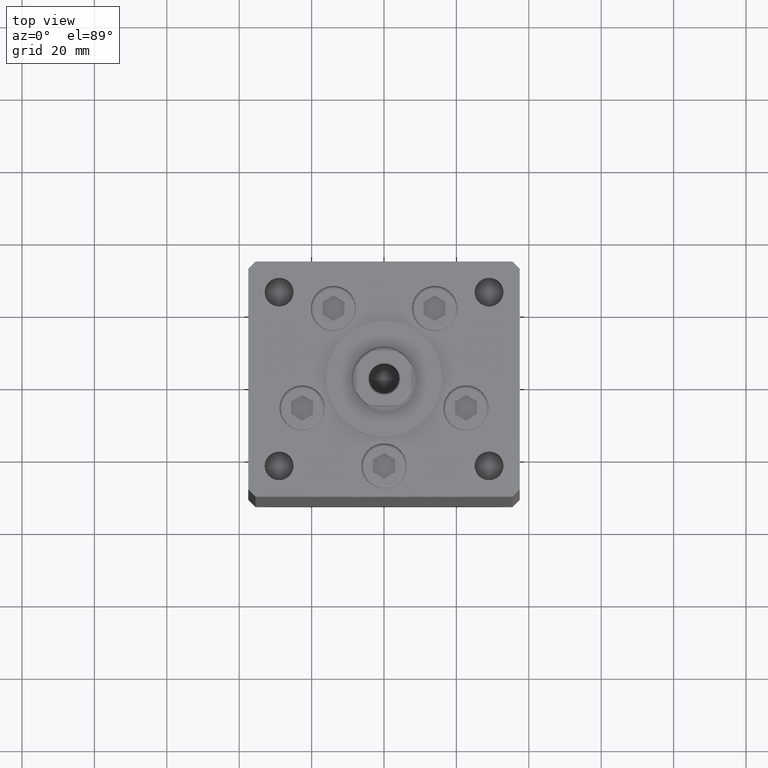
[diagram: clean part render]
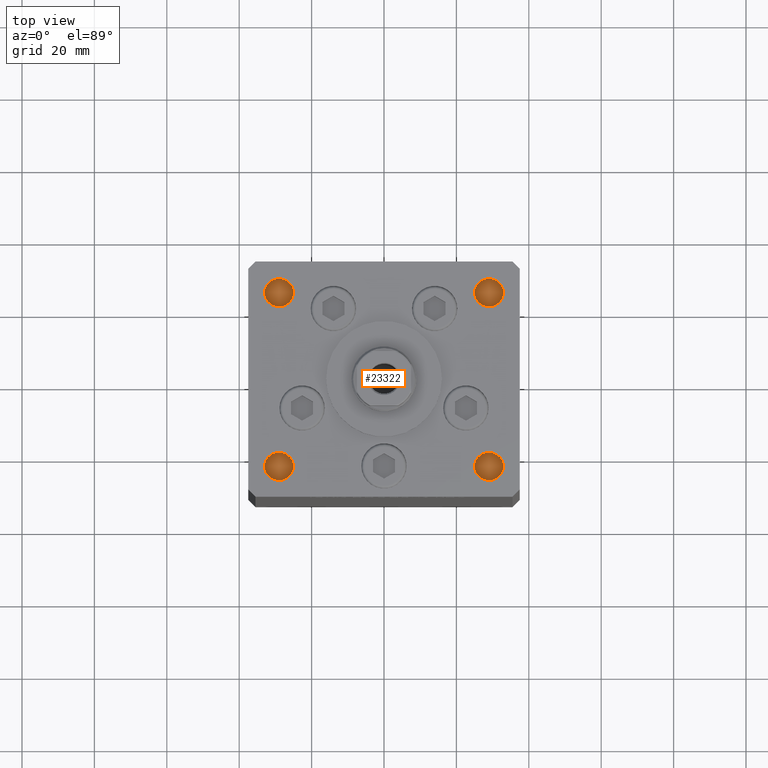
[diagram: same view with one face highlighted and labeled with its STEP entity id]
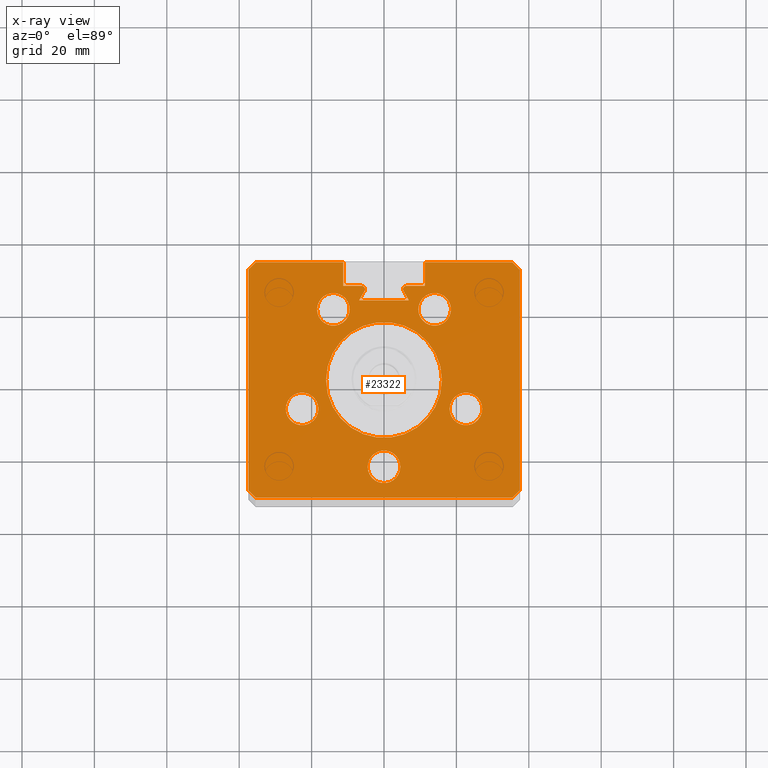
[diagram: x-ray of the same camera — body ghosted, the highlighted face saturated]
A machine part, top view. The second image highlights one B-rep face of the part: STEP entity #23322.
The next image is the same camera in x-ray: the body ghosted, the highlighted face saturated — about 0% of this face is hidden behind the body in this view.
In plain terms, the highlighted planar face has unit normal (0, 0, -1).
Its self-contained STEP definition (entity closure, byte-faithful):
#106 = CARTESIAN_POINT ( 'NONE',  ( -37.49999999999999289, -30.50000000000000000, 136.0000000000000000 ) ) ;
#451 = CARTESIAN_POINT ( 'NONE',  ( 9.491068579633218150, 19.50000000000000000, 136.0000000000000000 ) ) ;
#575 = VECTOR ( 'NONE', #12359, 1000.000000000000000 ) ;
#786 = EDGE_LOOP ( 'NONE', ( #5341, #2665 ) ) ;
#1082 = DIRECTION ( 'NONE',  ( 1.000000000000000000, 0.000000000000000000, 0.000000000000000000 ) ) ;
#2126 = CIRCLE ( 'NONE', #44800, 4.500000000000000888 ) ;
#2306 = PLANE ( 'NONE',  #11829 ) ;
#2416 = DIRECTION ( 'NONE',  ( 0.000000000000000000, 0.000000000000000000, -1.000000000000000000 ) ) ;
#2665 = ORIENTED_EDGE ( 'NONE', *, *, #43012, .F. ) ;
#2987 = CARTESIAN_POINT ( 'NONE',  ( 11.25000000000000178, 25.99999999999999289, 136.0000000000000000 ) ) ;
#2992 = CARTESIAN_POINT ( 'NONE',  ( -37.50000000000000711, 30.50000000000000000, 136.0000000000000000 ) ) ;
#3022 = DIRECTION ( 'NONE',  ( -1.000000000000000000, 0.000000000000000000, 0.000000000000000000 ) ) ;
#3182 = EDGE_LOOP ( 'NONE', ( #25991, #31328 ) ) ;
#3511 = EDGE_CURVE ( 'NONE', #28424, #33686, #51553, .T. ) ;
#3541 = VECTOR ( 'NONE', #19846, 1000.000000000000000 ) ;
#3674 = AXIS2_PLACEMENT_3D ( 'NONE', #12548, #21465, #21201 ) ;
#3694 = EDGE_CURVE ( 'NONE', #33686, #28424, #13075, .T. ) ;
#3736 = VECTOR ( 'NONE', #44527, 1000.000000000000000 ) ;
#3798 = CARTESIAN_POINT ( 'NONE',  ( -18.12741699796951877, -8.000000000000000000, 136.0000000000000000 ) ) ;
#3866 = LINE ( 'NONE', #10957, #3541 ) ;
#4028 = CIRCLE ( 'NONE', #48374, 4.500000000000000888 ) ;
#4087 = EDGE_CURVE ( 'NONE', #5761, #10708, #25005, .T. ) ;
#4102 = VERTEX_POINT ( 'NONE', #37808 ) ;
#4166 = CARTESIAN_POINT ( 'NONE',  ( -35.50000000000000000, 32.49999999999999289, 136.0000000000000000 ) ) ;
#4441 = ORIENTED_EDGE ( 'NONE', *, *, #40258, .F. ) ;
#5275 = LINE ( 'NONE', #29652, #22094 ) ;
#5293 = EDGE_CURVE ( 'NONE', #23223, #45381, #14691, .T. ) ;
#5341 = ORIENTED_EDGE ( 'NONE', *, *, #23480, .F. ) ;
#5484 = DIRECTION ( 'NONE',  ( 0.7071067811865474617, -0.7071067811865474617, 0.000000000000000000 ) ) ;
#5538 = DIRECTION ( 'NONE',  ( 0.4999999999999996114, 0.8660254037844388186, 0.000000000000000000 ) ) ;
#5761 = VERTEX_POINT ( 'NONE', #2987 ) ;
#5860 = CARTESIAN_POINT ( 'NONE',  ( 0.000000000000000000, 25.99999999999999289, 136.0000000000000000 ) ) ;
#5907 = EDGE_CURVE ( 'NONE', #38806, #48786, #15796, .T. ) ;
#6199 = VERTEX_POINT ( 'NONE', #22854 ) ;
#6410 = ORIENTED_EDGE ( 'NONE', *, *, #20699, .F. ) ;
#6443 = CARTESIAN_POINT ( 'NONE',  ( 0.000000000000000000, 25.99999999999999289, 136.0000000000000000 ) ) ;
#6708 = CARTESIAN_POINT ( 'NONE',  ( -5.250000000000000000, 25.06666666666599141, 136.0000000000000000 ) ) ;
#6720 = LINE ( 'NONE', #30040, #45207 ) ;
#6801 = VECTOR ( 'NONE', #5484, 1000.000000000000114 ) ;
#7028 = ORIENTED_EDGE ( 'NONE', *, *, #51155, .F. ) ;
#7127 = CARTESIAN_POINT ( 'NONE',  ( 6.183333333334001480, 25.06666666666599141, 136.0000000000000000 ) ) ;
#7144 = VERTEX_POINT ( 'NONE', #9179 ) ;
#7850 = DIRECTION ( 'NONE',  ( 1.000000000000000000, 0.000000000000000000, 0.000000000000000000 ) ) ;
#7851 = CARTESIAN_POINT ( 'NONE',  ( 0.000000000000000000, -24.00000000000000000, 136.0000000000000000 ) ) ;
#8125 = EDGE_LOOP ( 'NONE', ( #37289, #7028 ) ) ;
#8245 = VERTEX_POINT ( 'NONE', #14088 ) ;
#8321 = DIRECTION ( 'NONE',  ( -2.275047181608927644E-16, -1.000000000000000000, 0.000000000000000000 ) ) ;
#8527 = AXIS2_PLACEMENT_3D ( 'NONE', #32934, #29010, #36079 ) ;
#9133 = FACE_BOUND ( 'NONE', #786, .T. ) ;
#9179 = CARTESIAN_POINT ( 'NONE',  ( -6.183333333334001480, 25.99999999999999289, 136.0000000000000000 ) ) ;
#9218 = CIRCLE ( 'NONE', #49348, 4.500000000000003553 ) ;
#9411 = CARTESIAN_POINT ( 'NONE',  ( 13.99106857963322170, 19.50000000000000000, 136.0000000000000000 ) ) ;
#9645 = DIRECTION ( 'NONE',  ( 1.000000000000000000, 0.000000000000000000, 0.000000000000000000 ) ) ;
#10638 = LINE ( 'NONE', #50722, #12168 ) ;
#10708 = VERTEX_POINT ( 'NONE', #18925 ) ;
#10957 = CARTESIAN_POINT ( 'NONE',  ( 14.68339468389911495, 8.477461873366666012, 136.0000000000000000 ) ) ;
#10991 = ORIENTED_EDGE ( 'NONE', *, *, #25145, .T. ) ;
#11260 = AXIS2_PLACEMENT_3D ( 'NONE', #11577, #39360, #40111 ) ;
#11577 = CARTESIAN_POINT ( 'NONE',  ( -6.183333333334001480, 25.06666666666599141, 136.0000000000000000 ) ) ;
#11829 = AXIS2_PLACEMENT_3D ( 'NONE', #33236, #13062, #49217 ) ;
#12013 = CARTESIAN_POINT ( 'NONE',  ( 35.50000000000000000, 32.49999999999999289, 136.0000000000000000 ) ) ;
#12023 = DIRECTION ( 'NONE',  ( 0.000000000000000000, 0.000000000000000000, 1.000000000000000000 ) ) ;
#12106 = CARTESIAN_POINT ( 'NONE',  ( 0.000000000000000000, 21.99999999999986855, 136.0000000000000000 ) ) ;
#12168 = VECTOR ( 'NONE', #31074, 1000.000000000000000 ) ;
#12217 = EDGE_CURVE ( 'NONE', #33455, #40771, #48936, .T. ) ;
#12359 = DIRECTION ( 'NONE',  ( -1.000000000000000000, 0.000000000000000000, 0.000000000000000000 ) ) ;
#12548 = CARTESIAN_POINT ( 'NONE',  ( -22.62741699796951877, -8.000000000000000000, 136.0000000000000000 ) ) ;
#13062 = DIRECTION ( 'NONE',  ( 0.000000000000000000, 0.000000000000000000, -1.000000000000000000 ) ) ;
#13075 = CIRCLE ( 'NONE', #45736, 16.00000000000000000 ) ;
#13087 = DIRECTION ( 'NONE',  ( 1.000000000000000000, 0.000000000000000000, 0.000000000000000000 ) ) ;
#13120 = LINE ( 'NONE', #25180, #51525 ) ;
#13150 = ORIENTED_EDGE ( 'NONE', *, *, #4087, .T. ) ;
#13311 = EDGE_CURVE ( 'NONE', #51743, #30775, #4028, .T. ) ;
#13327 = ORIENTED_EDGE ( 'NONE', *, *, #31346, .F. ) ;
#13381 = DIRECTION ( 'NONE',  ( 1.000000000000000000, 0.000000000000000000, 0.000000000000000000 ) ) ;
#13621 = CIRCLE ( 'NONE', #38734, 0.9333333333340008142 ) ;
#13672 = ORIENTED_EDGE ( 'NONE', *, *, #32019, .F. ) ;
#13830 = FACE_BOUND ( 'NONE', #22710, .T. ) ;
#14039 = LINE ( 'NONE', #46792, #42849 ) ;
#14049 = VECTOR ( 'NONE', #8321, 1000.000000000000000 ) ;
#14088 = CARTESIAN_POINT ( 'NONE',  ( -35.49999999999999289, -32.50000000000000000, 136.0000000000000000 ) ) ;
#14337 = AXIS2_PLACEMENT_3D ( 'NONE', #7127, #2416, #50616 ) ;
#14691 = LINE ( 'NONE', #30688, #20658 ) ;
#14727 = CARTESIAN_POINT ( 'NONE',  ( 27.12741699796952233, -8.000000000000000000, 136.0000000000000000 ) ) ;
#15172 = CARTESIAN_POINT ( 'NONE',  ( 18.12741699796951877, -8.000000000000000000, 136.0000000000000000 ) ) ;
#15179 = CARTESIAN_POINT ( 'NONE',  ( 5.375042956467948052, 24.59999999999899245, 136.0000000000000000 ) ) ;
#15311 = CIRCLE ( 'NONE', #29527, 4.500000000000003553 ) ;
#15365 = VERTEX_POINT ( 'NONE', #43714 ) ;
#15589 = CIRCLE ( 'NONE', #19778, 4.500000000000000888 ) ;
#15796 = LINE ( 'NONE', #12106, #575 ) ;
#16013 = CIRCLE ( 'NONE', #14337, 0.9333333333340008142 ) ;
#16468 = CARTESIAN_POINT ( 'NONE',  ( 11.24999999999999467, 32.49999999999999289, 136.0000000000000000 ) ) ;
#16745 = LINE ( 'NONE', #44264, #41052 ) ;
#17052 = CIRCLE ( 'NONE', #3674, 4.500000000000000888 ) ;
#17150 = CARTESIAN_POINT ( 'NONE',  ( 6.876153656360466826, 21.99999999999986855, 136.0000000000000000 ) ) ;
#17237 = FACE_BOUND ( 'NONE', #8125, .T. ) ;
#17572 = EDGE_CURVE ( 'NONE', #7144, #15365, #22940, .T. ) ;
#17750 = CARTESIAN_POINT ( 'NONE',  ( 37.49999999999999289, -30.50000000000000000, 136.0000000000000000 ) ) ;
#18012 = CARTESIAN_POINT ( 'NONE',  ( -13.99106857963322170, 19.50000000000000000, 136.0000000000000000 ) ) ;
#18022 = FACE_BOUND ( 'NONE', #36644, .T. ) ;
#18113 = DIRECTION ( 'NONE',  ( 0.000000000000000000, 0.000000000000000000, -1.000000000000000000 ) ) ;
#18806 = EDGE_CURVE ( 'NONE', #19421, #41174, #9218, .T. ) ;
#18863 = CIRCLE ( 'NONE', #48130, 4.499999999999997335 ) ;
#18925 = CARTESIAN_POINT ( 'NONE',  ( 6.183333333334001480, 25.99999999999999289, 136.0000000000000000 ) ) ;
#19324 = CARTESIAN_POINT ( 'NONE',  ( -13.99106857963322170, 19.50000000000000000, 136.0000000000000000 ) ) ;
#19367 = CIRCLE ( 'NONE', #48637, 4.499999999999997335 ) ;
#19421 = VERTEX_POINT ( 'NONE', #27721 ) ;
#19778 = AXIS2_PLACEMENT_3D ( 'NONE', #36053, #44432, #44964 ) ;
#19846 = DIRECTION ( 'NONE',  ( 0.4999999999999996114, -0.8660254037844388186, 0.000000000000000000 ) ) ;
#20050 = EDGE_CURVE ( 'NONE', #23223, #4102, #6720, .T. ) ;
#20658 = VECTOR ( 'NONE', #26772, 1000.000000000000114 ) ;
#20699 = EDGE_CURVE ( 'NONE', #34746, #33455, #16745, .T. ) ;
#20980 = CARTESIAN_POINT ( 'NONE',  ( -16.00000000000000000, 0.000000000000000000, 136.0000000000000000 ) ) ;
#21201 = DIRECTION ( 'NONE',  ( 1.000000000000000000, 0.000000000000000000, 0.000000000000000000 ) ) ;
#21212 = LINE ( 'NONE', #33528, #6801 ) ;
#21465 = DIRECTION ( 'NONE',  ( 0.000000000000000000, 0.000000000000000000, 1.000000000000000000 ) ) ;
#21950 = CARTESIAN_POINT ( 'NONE',  ( -22.62741699796951877, -8.000000000000000000, 136.0000000000000000 ) ) ;
#22037 = DIRECTION ( 'NONE',  ( 2.275047181608927644E-16, -1.000000000000000000, 0.000000000000000000 ) ) ;
#22094 = VECTOR ( 'NONE', #5538, 1000.000000000000000 ) ;
#22435 = EDGE_CURVE ( 'NONE', #49929, #10708, #16013, .T. ) ;
#22497 = DIRECTION ( 'NONE',  ( 1.000000000000000000, 0.000000000000000000, 0.000000000000000000 ) ) ;
#22710 = EDGE_LOOP ( 'NONE', ( #13327, #47252 ) ) ;
#22854 = CARTESIAN_POINT ( 'NONE',  ( -18.49106857963321815, 19.50000000000000000, 136.0000000000000000 ) ) ;
#22940 = LINE ( 'NONE', #6443, #41806 ) ;
#22952 = CARTESIAN_POINT ( 'NONE',  ( -5.375042956467946276, 24.59999999999899245, 136.0000000000000000 ) ) ;
#23223 = VERTEX_POINT ( 'NONE', #4166 ) ;
#23322 = ADVANCED_FACE ( 'NONE', ( #18022, #13830, #17237, #30091, #9133, #29051, #25903 ), #2306, .F. ) ;
#23480 = EDGE_CURVE ( 'NONE', #31278, #6199, #19367, .T. ) ;
#23780 = ORIENTED_EDGE ( 'NONE', *, *, #30590, .F. ) ;
#23972 = AXIS2_PLACEMENT_3D ( 'NONE', #45545, #42136, #9645 ) ;
#24179 = ORIENTED_EDGE ( 'NONE', *, *, #32257, .F. ) ;
#24351 = DIRECTION ( 'NONE',  ( 0.000000000000000000, 0.000000000000000000, 1.000000000000000000 ) ) ;
#24799 = CARTESIAN_POINT ( 'NONE',  ( 0.000000000000000000, 0.000000000000000000, 136.0000000000000000 ) ) ;
#24994 = CARTESIAN_POINT ( 'NONE',  ( 37.50000000000000711, 30.50000000000000000, 136.0000000000000000 ) ) ;
#25005 = LINE ( 'NONE', #5860, #46567 ) ;
#25145 = EDGE_CURVE ( 'NONE', #49929, #38806, #3866, .T. ) ;
#25180 = CARTESIAN_POINT ( 'NONE',  ( -11.25000000000000178, 32.49999999999999289, 136.0000000000000000 ) ) ;
#25250 = EDGE_CURVE ( 'NONE', #25901, #48211, #48709, .T. ) ;
#25634 = ORIENTED_EDGE ( 'NONE', *, *, #45123, .T. ) ;
#25901 = VERTEX_POINT ( 'NONE', #42506 ) ;
#25903 = FACE_BOUND ( 'NONE', #3182, .T. ) ;
#25967 = LINE ( 'NONE', #37217, #47150 ) ;
#25991 = ORIENTED_EDGE ( 'NONE', *, *, #3694, .F. ) ;
#26377 = ORIENTED_EDGE ( 'NONE', *, *, #18806, .F. ) ;
#26641 = DIRECTION ( 'NONE',  ( 1.000000000000000000, 0.000000000000000000, 0.000000000000000000 ) ) ;
#26772 = DIRECTION ( 'NONE',  ( -0.7071067811865500152, -0.7071067811865451302, 0.000000000000000000 ) ) ;
#26890 = DIRECTION ( 'NONE',  ( -0.7071067811865474617, -0.7071067811865474617, 0.000000000000000000 ) ) ;
#27453 = DIRECTION ( 'NONE',  ( 0.000000000000000000, 0.000000000000000000, 1.000000000000000000 ) ) ;
#27682 = EDGE_CURVE ( 'NONE', #34172, #8245, #21212, .T. ) ;
#27721 = CARTESIAN_POINT ( 'NONE',  ( 18.49106857963322526, 19.50000000000000000, 136.0000000000000000 ) ) ;
#28027 = DIRECTION ( 'NONE',  ( 1.000000000000000000, 0.000000000000000000, 0.000000000000000000 ) ) ;
#28291 = VERTEX_POINT ( 'NONE', #14727 ) ;
#28424 = VERTEX_POINT ( 'NONE', #29367 ) ;
#28552 = CARTESIAN_POINT ( 'NONE',  ( 11.25000000000000178, 0.000000000000000000, 136.0000000000000000 ) ) ;
#28931 = DIRECTION ( 'NONE',  ( -1.000000000000000000, 0.000000000000000000, 0.000000000000000000 ) ) ;
#29010 = DIRECTION ( 'NONE',  ( 0.000000000000000000, 0.000000000000000000, 1.000000000000000000 ) ) ;
#29045 = DIRECTION ( 'NONE',  ( 1.000000000000000000, 0.000000000000000000, 0.000000000000000000 ) ) ;
#29051 = FACE_OUTER_BOUND ( 'NONE', #36193, .T. ) ;
#29367 = CARTESIAN_POINT ( 'NONE',  ( 16.00000000000000000, 1.959434878635765131E-15, 136.0000000000000000 ) ) ;
#29527 = AXIS2_PLACEMENT_3D ( 'NONE', #9411, #40591, #13087 ) ;
#29548 = DIRECTION ( 'NONE',  ( 1.000000000000000000, 0.000000000000000000, 0.000000000000000000 ) ) ;
#29652 = CARTESIAN_POINT ( 'NONE',  ( -14.68339468389911495, 8.477461873366666012, 136.0000000000000000 ) ) ;
#29809 = DIRECTION ( 'NONE',  ( 0.000000000000000000, 0.000000000000000000, 1.000000000000000000 ) ) ;
#29843 = VERTEX_POINT ( 'NONE', #6708 ) ;
#30040 = CARTESIAN_POINT ( 'NONE',  ( -11.25000000000000178, 32.49999999999999289, 136.0000000000000000 ) ) ;
#30091 = FACE_BOUND ( 'NONE', #51487, .T. ) ;
#30590 = EDGE_CURVE ( 'NONE', #40771, #38092, #14039, .T. ) ;
#30688 = CARTESIAN_POINT ( 'NONE',  ( -35.50000000000000000, 32.49999999999999289, 136.0000000000000000 ) ) ;
#30693 = DIRECTION ( 'NONE',  ( 1.000000000000000000, 0.000000000000000000, 0.000000000000000000 ) ) ;
#30775 = VERTEX_POINT ( 'NONE', #35244 ) ;
#31074 = DIRECTION ( 'NONE',  ( 1.000000000000000000, 0.000000000000000000, 0.000000000000000000 ) ) ;
#31278 = VERTEX_POINT ( 'NONE', #46411 ) ;
#31328 = ORIENTED_EDGE ( 'NONE', *, *, #3511, .F. ) ;
#31346 = EDGE_CURVE ( 'NONE', #48211, #25901, #49569, .T. ) ;
#31371 = VERTEX_POINT ( 'NONE', #16468 ) ;
#31934 = ORIENTED_EDGE ( 'NONE', *, *, #50551, .F. ) ;
#32019 = EDGE_CURVE ( 'NONE', #29843, #51573, #13621, .T. ) ;
#32257 = EDGE_CURVE ( 'NONE', #41174, #19421, #15311, .T. ) ;
#32659 = DIRECTION ( 'NONE',  ( -0.000000000000000000, 0.000000000000000000, 1.000000000000000000 ) ) ;
#32934 = CARTESIAN_POINT ( 'NONE',  ( 0.000000000000000000, -24.00000000000000000, 136.0000000000000000 ) ) ;
#33236 = CARTESIAN_POINT ( 'NONE',  ( 0.000000000000000000, 0.000000000000000000, 136.0000000000000000 ) ) ;
#33455 = VERTEX_POINT ( 'NONE', #24994 ) ;
#33528 = CARTESIAN_POINT ( 'NONE',  ( -37.49999999999999289, -30.50000000000000000, 136.0000000000000000 ) ) ;
#33686 = VERTEX_POINT ( 'NONE', #20980 ) ;
#33827 = DIRECTION ( 'NONE',  ( 0.000000000000000000, 0.000000000000000000, 1.000000000000000000 ) ) ;
#33841 = EDGE_CURVE ( 'NONE', #45381, #34172, #25967, .T. ) ;
#33852 = CIRCLE ( 'NONE', #11260, 0.9333333333340008142 ) ;
#34172 = VERTEX_POINT ( 'NONE', #106 ) ;
#34260 = DIRECTION ( 'NONE',  ( 0.000000000000000000, 0.000000000000000000, 1.000000000000000000 ) ) ;
#34746 = VERTEX_POINT ( 'NONE', #12013 ) ;
#35244 = CARTESIAN_POINT ( 'NONE',  ( -27.12741699796952233, -8.000000000000000000, 136.0000000000000000 ) ) ;
#35354 = EDGE_CURVE ( 'NONE', #48786, #51573, #5275, .T. ) ;
#35579 = ORIENTED_EDGE ( 'NONE', *, *, #5907, .T. ) ;
#35638 = EDGE_CURVE ( 'NONE', #30775, #51743, #17052, .T. ) ;
#36053 = CARTESIAN_POINT ( 'NONE',  ( 22.62741699796951877, -8.000000000000000000, 136.0000000000000000 ) ) ;
#36064 = DIRECTION ( 'NONE',  ( 1.000000000000000000, 0.000000000000000000, 0.000000000000000000 ) ) ;
#36079 = DIRECTION ( 'NONE',  ( 1.000000000000000000, 0.000000000000000000, 0.000000000000000000 ) ) ;
#36193 = EDGE_LOOP ( 'NONE', ( #44029, #38555, #43386, #42547, #46651, #36388, #46946, #23780, #51284, #6410, #31934, #25634, #13150, #41417, #10991, #35579, #39208, #13672, #4441 ) ) ;
#36388 = ORIENTED_EDGE ( 'NONE', *, *, #27682, .T. ) ;
#36644 = EDGE_LOOP ( 'NONE', ( #48274, #38298 ) ) ;
#36922 = DIRECTION ( 'NONE',  ( 0.7071067811865500152, -0.7071067811865451302, 0.000000000000000000 ) ) ;
#37217 = CARTESIAN_POINT ( 'NONE',  ( -37.50000000000000711, 30.50000000000000000, 136.0000000000000000 ) ) ;
#37289 = ORIENTED_EDGE ( 'NONE', *, *, #48497, .F. ) ;
#37808 = CARTESIAN_POINT ( 'NONE',  ( -11.25000000000000178, 32.49999999999999289, 136.0000000000000000 ) ) ;
#38041 = VECTOR ( 'NONE', #49187, 1000.000000000000000 ) ;
#38092 = VERTEX_POINT ( 'NONE', #41780 ) ;
#38298 = ORIENTED_EDGE ( 'NONE', *, *, #35638, .F. ) ;
#38555 = ORIENTED_EDGE ( 'NONE', *, *, #41199, .T. ) ;
#38734 = AXIS2_PLACEMENT_3D ( 'NONE', #50858, #18113, #30693 ) ;
#38806 = VERTEX_POINT ( 'NONE', #17150 ) ;
#39208 = ORIENTED_EDGE ( 'NONE', *, *, #35354, .T. ) ;
#39360 = DIRECTION ( 'NONE',  ( 0.000000000000000000, 0.000000000000000000, -1.000000000000000000 ) ) ;
#39710 = VERTEX_POINT ( 'NONE', #15172 ) ;
#40111 = DIRECTION ( 'NONE',  ( 1.000000000000000000, 0.000000000000000000, 0.000000000000000000 ) ) ;
#40192 = CARTESIAN_POINT ( 'NONE',  ( 4.500000000000000000, -24.00000000000000000, 136.0000000000000000 ) ) ;
#40258 = EDGE_CURVE ( 'NONE', #7144, #29843, #33852, .T. ) ;
#40591 = DIRECTION ( 'NONE',  ( 0.000000000000000000, 0.000000000000000000, 1.000000000000000000 ) ) ;
#40771 = VERTEX_POINT ( 'NONE', #17750 ) ;
#41052 = VECTOR ( 'NONE', #36922, 1000.000000000000114 ) ;
#41174 = VERTEX_POINT ( 'NONE', #451 ) ;
#41199 = EDGE_CURVE ( 'NONE', #15365, #4102, #48405, .T. ) ;
#41417 = ORIENTED_EDGE ( 'NONE', *, *, #22435, .F. ) ;
#41780 = CARTESIAN_POINT ( 'NONE',  ( 35.49999999999999289, -32.50000000000000000, 136.0000000000000000 ) ) ;
#41806 = VECTOR ( 'NONE', #3022, 1000.000000000000000 ) ;
#42136 = DIRECTION ( 'NONE',  ( -0.000000000000000000, 0.000000000000000000, 1.000000000000000000 ) ) ;
#42506 = CARTESIAN_POINT ( 'NONE',  ( -4.500000000000000000, -24.00000000000000000, 136.0000000000000000 ) ) ;
#42547 = ORIENTED_EDGE ( 'NONE', *, *, #5293, .T. ) ;
#42849 = VECTOR ( 'NONE', #26890, 1000.000000000000114 ) ;
#43012 = EDGE_CURVE ( 'NONE', #6199, #31278, #18863, .T. ) ;
#43386 = ORIENTED_EDGE ( 'NONE', *, *, #20050, .F. ) ;
#43714 = CARTESIAN_POINT ( 'NONE',  ( -11.25000000000000178, 25.99999999999999289, 136.0000000000000000 ) ) ;
#44029 = ORIENTED_EDGE ( 'NONE', *, *, #17572, .T. ) ;
#44264 = CARTESIAN_POINT ( 'NONE',  ( 35.50000000000000000, 32.49999999999999289, 136.0000000000000000 ) ) ;
#44281 = EDGE_CURVE ( 'NONE', #8245, #38092, #10638, .T. ) ;
#44432 = DIRECTION ( 'NONE',  ( 0.000000000000000000, 0.000000000000000000, 1.000000000000000000 ) ) ;
#44527 = DIRECTION ( 'NONE',  ( -0.000000000000000000, -1.000000000000000000, 0.000000000000000000 ) ) ;
#44790 = LINE ( 'NONE', #28552, #3736 ) ;
#44800 = AXIS2_PLACEMENT_3D ( 'NONE', #47686, #24351, #7850 ) ;
#44964 = DIRECTION ( 'NONE',  ( 1.000000000000000000, 0.000000000000000000, 0.000000000000000000 ) ) ;
#45123 = EDGE_CURVE ( 'NONE', #31371, #5761, #44790, .T. ) ;
#45207 = VECTOR ( 'NONE', #26641, 1000.000000000000000 ) ;
#45262 = CARTESIAN_POINT ( 'NONE',  ( -11.25000000000000178, 0.000000000000000000, 136.0000000000000000 ) ) ;
#45381 = VERTEX_POINT ( 'NONE', #2992 ) ;
#45545 = CARTESIAN_POINT ( 'NONE',  ( 0.000000000000000000, 0.000000000000000000, 136.0000000000000000 ) ) ;
#45736 = AXIS2_PLACEMENT_3D ( 'NONE', #24799, #32659, #36064 ) ;
#46251 = AXIS2_PLACEMENT_3D ( 'NONE', #7851, #12023, #28027 ) ;
#46411 = CARTESIAN_POINT ( 'NONE',  ( -9.491068579633225255, 19.50000000000000000, 136.0000000000000000 ) ) ;
#46567 = VECTOR ( 'NONE', #28931, 1000.000000000000000 ) ;
#46651 = ORIENTED_EDGE ( 'NONE', *, *, #33841, .T. ) ;
#46792 = CARTESIAN_POINT ( 'NONE',  ( 37.49999999999999289, -30.50000000000000000, 136.0000000000000000 ) ) ;
#46946 = ORIENTED_EDGE ( 'NONE', *, *, #44281, .T. ) ;
#47150 = VECTOR ( 'NONE', #22037, 1000.000000000000000 ) ;
#47252 = ORIENTED_EDGE ( 'NONE', *, *, #25250, .F. ) ;
#47401 = CARTESIAN_POINT ( 'NONE',  ( -6.876153656360466826, 21.99999999999986855, 136.0000000000000000 ) ) ;
#47686 = CARTESIAN_POINT ( 'NONE',  ( 22.62741699796951877, -8.000000000000000000, 136.0000000000000000 ) ) ;
#48130 = AXIS2_PLACEMENT_3D ( 'NONE', #18012, #34260, #29045 ) ;
#48211 = VERTEX_POINT ( 'NONE', #40192 ) ;
#48274 = ORIENTED_EDGE ( 'NONE', *, *, #13311, .F. ) ;
#48374 = AXIS2_PLACEMENT_3D ( 'NONE', #21950, #29809, #29548 ) ;
#48405 = LINE ( 'NONE', #45262, #38041 ) ;
#48497 = EDGE_CURVE ( 'NONE', #28291, #39710, #2126, .T. ) ;
#48637 = AXIS2_PLACEMENT_3D ( 'NONE', #19324, #27453, #22497 ) ;
#48709 = CIRCLE ( 'NONE', #8527, 4.500000000000000000 ) ;
#48770 = CARTESIAN_POINT ( 'NONE',  ( 13.99106857963322170, 19.50000000000000000, 136.0000000000000000 ) ) ;
#48786 = VERTEX_POINT ( 'NONE', #47401 ) ;
#48936 = LINE ( 'NONE', #51820, #14049 ) ;
#49187 = DIRECTION ( 'NONE',  ( 0.000000000000000000, 1.000000000000000000, 0.000000000000000000 ) ) ;
#49217 = DIRECTION ( 'NONE',  ( -1.000000000000000000, 0.000000000000000000, -0.000000000000000000 ) ) ;
#49348 = AXIS2_PLACEMENT_3D ( 'NONE', #48770, #33827, #1082 ) ;
#49569 = CIRCLE ( 'NONE', #46251, 4.500000000000000000 ) ;
#49929 = VERTEX_POINT ( 'NONE', #15179 ) ;
#50551 = EDGE_CURVE ( 'NONE', #31371, #34746, #13120, .T. ) ;
#50616 = DIRECTION ( 'NONE',  ( 1.000000000000000000, 0.000000000000000000, 0.000000000000000000 ) ) ;
#50722 = CARTESIAN_POINT ( 'NONE',  ( -35.49999999999999289, -32.50000000000000000, 136.0000000000000000 ) ) ;
#50858 = CARTESIAN_POINT ( 'NONE',  ( -6.183333333334001480, 25.06666666666599141, 136.0000000000000000 ) ) ;
#51155 = EDGE_CURVE ( 'NONE', #39710, #28291, #15589, .T. ) ;
#51284 = ORIENTED_EDGE ( 'NONE', *, *, #12217, .F. ) ;
#51487 = EDGE_LOOP ( 'NONE', ( #26377, #24179 ) ) ;
#51525 = VECTOR ( 'NONE', #13381, 1000.000000000000000 ) ;
#51553 = CIRCLE ( 'NONE', #23972, 16.00000000000000000 ) ;
#51573 = VERTEX_POINT ( 'NONE', #22952 ) ;
#51743 = VERTEX_POINT ( 'NONE', #3798 ) ;
#51820 = CARTESIAN_POINT ( 'NONE',  ( 37.50000000000000711, 30.50000000000000000, 136.0000000000000000 ) ) ;